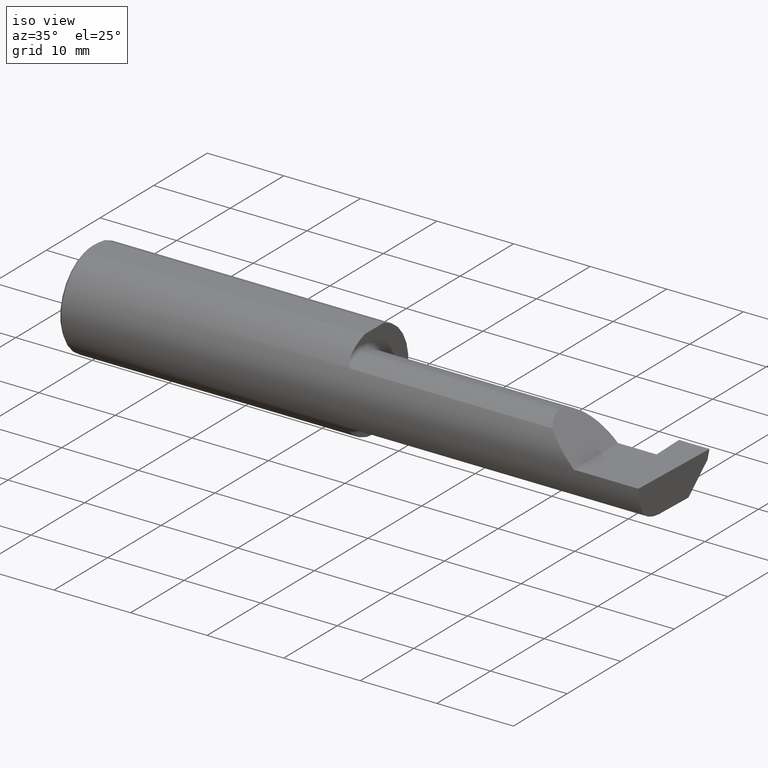
[diagram: clean part render]
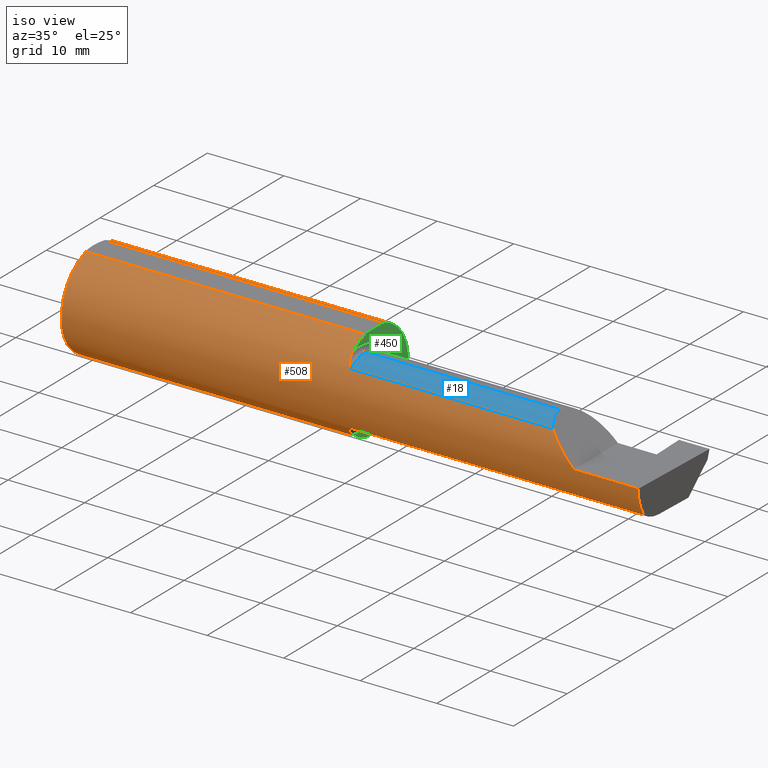
[diagram: same view with three faces highlighted in distinct colors, each labeled with its STEP entity id]
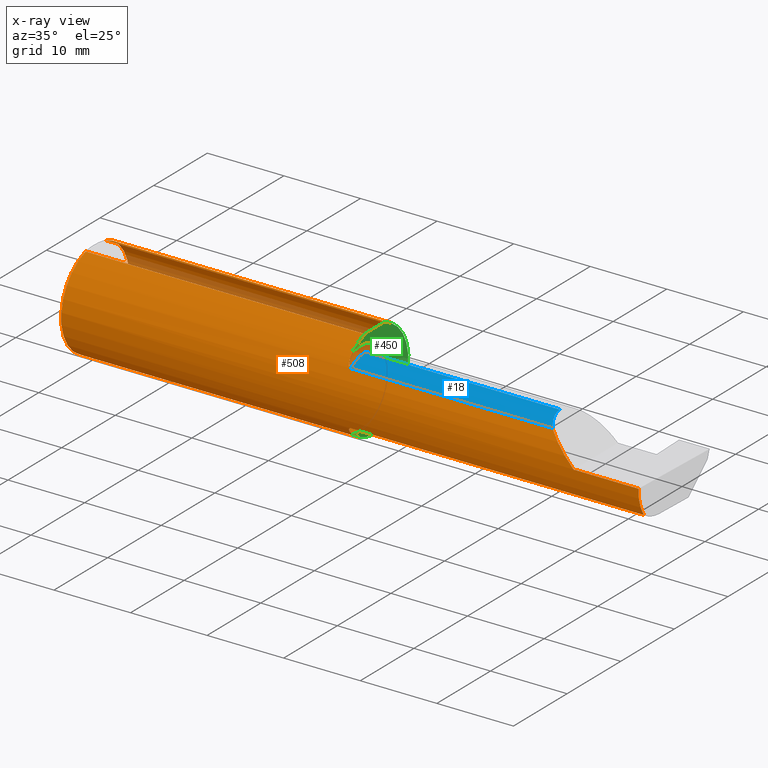
[diagram: x-ray of the same camera — body ghosted, the three highlighted faces saturated]
A machine part, iso view with three faces highlighted in distinct colors.
The next image is the same camera in x-ray (body ghosted, the three faces saturated) — at least one of them is partly hidden behind the body in this view.
Their STEP definitions:

[orange] entity #508 — the highlighted cylindrical surface (partial cylindrical patch) has radius 6.3462 mm, axis along (-1, -0, -0).
#3 = CARTESIAN_POINT ( 'NONE',  ( 1.450000000000000400, -0.1716188362992555616, -0.1820560320165479640 ) ) ;
#4 = CARTESIAN_POINT ( 'NONE',  ( 1.451849548162864822, -0.1805300287242673496, 0.1728462070311780341 ) ) ;
#6 = DIRECTION ( 'NONE',  ( 0.000000000000000000, 0.000000000000000000, 1.000000000000000000 ) ) ;
#9 = CARTESIAN_POINT ( 'NONE',  ( 1.474999999999999867, -0.2080850024789292485, 0.1382955322609664972 ) ) ;
#10 = CIRCLE ( 'NONE', #130, 0.2498499999999999888 ) ;
#11 = VERTEX_POINT ( 'NONE', #604 ) ;
#20 = CARTESIAN_POINT ( 'NONE',  ( 2.159000000000000252, -0.2080850024789291652, 0.1382955322609665250 ) ) ;
#31 = DIRECTION ( 'NONE',  ( -1.000000000000000000, -0.000000000000000000, -0.000000000000000000 ) ) ;
#35 = EDGE_CURVE ( 'NONE', #268, #240, #403, .T. ) ;
#49 = CARTESIAN_POINT ( 'NONE',  ( 0.000000000000000000, -0.06997856814768359246, 0.2398500000000000076 ) ) ;
#58 = EDGE_CURVE ( 'NONE', #181, #777, #781, .T. ) ;
#61 = CARTESIAN_POINT ( 'NONE',  ( 1.451385488563269988, -0.1808287530430325030, -0.1728790649396287349 ) ) ;
#67 = VECTOR ( 'NONE', #624, 39.37007874015748143 ) ;
#70 = CARTESIAN_POINT ( 'NONE',  ( 2.977412177158956563, -0.2496672875357696664, -0.1999314649951114686 ) ) ;
#80 = CARTESIAN_POINT ( 'NONE',  ( 1.462616400345755352, -0.2024684335577100758, 0.1464246884265640869 ) ) ;
#97 = EDGE_CURVE ( 'NONE', #777, #240, #135, .T. ) ;
#115 = DIRECTION ( 'NONE',  ( -1.000000000000000000, -0.000000000000000000, -0.000000000000000000 ) ) ;
#130 = AXIS2_PLACEMENT_3D ( 'NONE', #705, #242, #370 ) ;
#134 = CARTESIAN_POINT ( 'NONE',  ( 1.468863362722770516, -0.2068301641248769807, -0.1401678546132362202 ) ) ;
#135 = LINE ( 'NONE', #20, #67 ) ;
#147 = CARTESIAN_POINT ( 'NONE',  ( 1.458182335268384477, -0.1972192205116128916, 0.1535061413537212038 ) ) ;
#149 = CARTESIAN_POINT ( 'NONE',  ( 0.01499999999999999944, 0.000000000000000000, 0.000000000000000000 ) ) ;
#154 = VECTOR ( 'NONE', #797, 39.37007874015748854 ) ;
#157 = AXIS2_PLACEMENT_3D ( 'NONE', #560, #115, #6 ) ;
#166 = AXIS2_PLACEMENT_3D ( 'NONE', #149, #327, #214 ) ;
#169 = ORIENTED_EDGE ( 'NONE', *, *, #58, .F. ) ;
#171 = CARTESIAN_POINT ( 'NONE',  ( 1.450000000000000178, 0.000000000000000000, 0.000000000000000000 ) ) ;
#181 = VERTEX_POINT ( 'NONE', #292 ) ;
#184 = CARTESIAN_POINT ( 'NONE',  ( 0.01499999999999998036, 0.06997856814768359246, 0.2398500000000000076 ) ) ;
#189 = ORIENTED_EDGE ( 'NONE', *, *, #396, .T. ) ;
#199 = CARTESIAN_POINT ( 'NONE',  ( 1.471700027347579542, -0.2077785947292766777, -0.1387580622202828073 ) ) ;
#200 = EDGE_LOOP ( 'NONE', ( #341, #595, #310, #684, #169, #593, #575, #406, #326, #525, #446, #284, #489, #189 ) ) ;
#201 = CARTESIAN_POINT ( 'NONE',  ( 4.499279347985559139E-32, -0.2498499999999999610, 3.673940397442053459E-16 ) ) ;
#207 = CARTESIAN_POINT ( 'NONE',  ( 1.467647060162628136, -0.2062109266231179627, 0.1410799729252294465 ) ) ;
#211 = CARTESIAN_POINT ( 'NONE',  ( 2.511704467739034552, -0.2080850024789292485, 0.1382955322609664139 ) ) ;
#214 = DIRECTION ( 'NONE',  ( 0.000000000000000000, 0.000000000000000000, 1.000000000000000000 ) ) ;
#217 = LINE ( 'NONE', #49, #743 ) ;
#225 = EDGE_CURVE ( 'NONE', #739, #11, #217, .T. ) ;
#236 = CARTESIAN_POINT ( 'NONE',  ( 2.511704467739034552, -0.2080850024789292485, 0.1382955322609664139 ) ) ;
#240 = VERTEX_POINT ( 'NONE', #211 ) ;
#242 = DIRECTION ( 'NONE',  ( 1.000000000000000000, 0.000000000000000000, 0.000000000000000000 ) ) ;
#243 = EDGE_CURVE ( 'NONE', #11, #181, #535, .T. ) ;
#258 = CARTESIAN_POINT ( 'NONE',  ( 1.473329956043142541, -0.2080850024798588660, 0.1382955322595677550 ) ) ;
#261 = FACE_OUTER_BOUND ( 'NONE', #200, .T. ) ;
#263 = CARTESIAN_POINT ( 'NONE',  ( 1.452968662030528879, -0.1849684355203377040, 0.1680843977756268370 ) ) ;
#268 = VERTEX_POINT ( 'NONE', #584 ) ;
#269 = DIRECTION ( 'NONE',  ( -1.000000000000000000, -0.000000000000000000, -0.000000000000000000 ) ) ;
#279 = CARTESIAN_POINT ( 'NONE',  ( 1.474999999999999867, -0.2080850024789292485, 0.1382955322609664972 ) ) ;
#282 = EDGE_CURVE ( 'NONE', #789, #714, #643, .T. ) ;
#284 = ORIENTED_EDGE ( 'NONE', *, *, #667, .F. ) ;
#285 = CIRCLE ( 'NONE', #166, 0.2498499999999999888 ) ;
#292 = CARTESIAN_POINT ( 'NONE',  ( 1.450000000000000622, -0.1616050818046604332, 0.1905487340154980169 ) ) ;
#301 = CARTESIAN_POINT ( 'NONE',  ( 1.464302603425052807, -0.2041009206016212441, -0.1441313430770041482 ) ) ;
#303 = EDGE_CURVE ( 'NONE', #488, #694, #10, .T. ) ;
#310 = ORIENTED_EDGE ( 'NONE', *, *, #35, .T. ) ;
#319 = CARTESIAN_POINT ( 'NONE',  ( 1.450000000000000622, -0.1616050818046604332, 0.1905487340154980169 ) ) ;
#326 = ORIENTED_EDGE ( 'NONE', *, *, #350, .F. ) ;
#327 = DIRECTION ( 'NONE',  ( -1.000000000000000000, -0.000000000000000000, -0.000000000000000000 ) ) ;
#331 = CARTESIAN_POINT ( 'NONE',  ( 0.000000000000000000, 0.06997856814768359246, 0.2398500000000000076 ) ) ;
#337 = CARTESIAN_POINT ( 'NONE',  ( 2.159000000000000252, -0.2080850024789291652, -0.1382955322609665250 ) ) ;
#341 = ORIENTED_EDGE ( 'NONE', *, *, #660, .T. ) ;
#345 = VERTEX_POINT ( 'NONE', #544 ) ;
#350 = EDGE_CURVE ( 'NONE', #678, #773, #385, .T. ) ;
#358 = VECTOR ( 'NONE', #452, 39.37007874015748143 ) ;
#370 = DIRECTION ( 'NONE',  ( 0.000000000000000000, 0.000000000000000000, -1.000000000000000000 ) ) ;
#385 = CIRCLE ( 'NONE', #157, 0.2498499999999999888 ) ;
#389 = CARTESIAN_POINT ( 'NONE',  ( 1.456159563508734323, -0.1933019864360847051, 0.1584298865564832959 ) ) ;
#395 = VERTEX_POINT ( 'NONE', #614 ) ;
#396 = EDGE_CURVE ( 'NONE', #789, #345, #591, .T. ) ;
#399 = DIRECTION ( 'NONE',  ( 1.000000000000000000, 0.000000000000000000, 0.000000000000000000 ) ) ;
#400 = AXIS2_PLACEMENT_3D ( 'NONE', #171, #537, #474 ) ;
#403 =( BOUNDED_CURVE ( )  B_SPLINE_CURVE ( 3, ( #414, #662, #416, #236 ),
 .UNSPECIFIED., .F., .F. ) 
 B_SPLINE_CURVE_WITH_KNOTS ( ( 4, 4 ),
 ( 4.712388980384689674, 5.298966915116346321 ),
 .UNSPECIFIED. ) 
 CURVE ( )  GEOMETRIC_REPRESENTATION_ITEM ( )  RATIONAL_B_SPLINE_CURVE ( ( 1.000000000000000000, 0.9715321379117538569, 0.9715321379117538569, 1.000000000000000000 ) ) 
 REPRESENTATION_ITEM ( '' )  );
#406 = ORIENTED_EDGE ( 'NONE', *, *, #558, .F. ) ;
#414 = CARTESIAN_POINT ( 'NONE',  ( 2.650000000000000355, -0.2498499999999999610, 4.286263797015727350E-17 ) ) ;
#416 = CARTESIAN_POINT ( 'NONE',  ( 2.552984868485333347, -0.2355204011147992438, 0.09701513151466735485 ) ) ;
#421 = CARTESIAN_POINT ( 'NONE',  ( 2.980479240051444378, -0.2080850024789291652, -0.1382955322609665250 ) ) ;
#423 = CARTESIAN_POINT ( 'NONE',  ( 1.474999999999999867, -0.2080850024789291375, -0.1382955322609665805 ) ) ;
#427 = CARTESIAN_POINT ( 'NONE',  ( 1.474999999999999867, -0.2080850024789291375, -0.1382955322609665805 ) ) ;
#432 = CARTESIAN_POINT ( 'NONE',  ( 1.467611663768900510, -0.2061921161193829011, -0.1411075319999378908 ) ) ;
#441 = CARTESIAN_POINT ( 'NONE',  ( 1.468876997637614590, -0.2068363917296598409, 0.1401586554522232519 ) ) ;
#443 = LINE ( 'NONE', #201, #358 ) ;
#446 = ORIENTED_EDGE ( 'NONE', *, *, #303, .F. ) ;
#452 = DIRECTION ( 'NONE',  ( -1.000000000000000000, -0.000000000000000000, -0.000000000000000000 ) ) ;
#465 = AXIS2_PLACEMENT_3D ( 'NONE', #630, #269, #640 ) ;
#474 = DIRECTION ( 'NONE',  ( 0.000000000000000000, 0.000000000000000000, -1.000000000000000000 ) ) ;
#480 = VECTOR ( 'NONE', #576, 39.37007874015748143 ) ;
#486 = EDGE_CURVE ( 'NONE', #395, #268, #443, .T. ) ;
#487 = CARTESIAN_POINT ( 'NONE',  ( 1.450000000000000178, 0.06997856814768360634, 0.2398500000000000076 ) ) ;
#488 = VERTEX_POINT ( 'NONE', #764 ) ;
#489 = ORIENTED_EDGE ( 'NONE', *, *, #282, .F. ) ;
#508 = ADVANCED_FACE ( 'NONE', ( #261 ), #690, .T. ) ;
#509 = CARTESIAN_POINT ( 'NONE',  ( 1.471718393013768722, -0.2077830475237239238, 0.1387513848711939835 ) ) ;
#513 = B_SPLINE_CURVE_WITH_KNOTS ( 'NONE', 3,
 ( #427, #748, #199, #134, #432, #301, #687, #668, #546, #61, #3, #735 ),
 .UNSPECIFIED., .F., .F.,
 ( 4, 2, 2, 2, 2, 4 ),
 ( 1.964491428972344989E-07, 0.0001260981470478338953, 0.0002519998449527705497, 0.0005038032407626305770, 0.001007410032382351824, 0.002014623615621801474 ),
 .UNSPECIFIED. ) ;
#525 = ORIENTED_EDGE ( 'NONE', *, *, #609, .F. ) ;
#535 = CIRCLE ( 'NONE', #400, 0.2498499999999999888 ) ;
#537 = DIRECTION ( 'NONE',  ( 1.000000000000000000, 0.000000000000000000, 0.000000000000000000 ) ) ;
#544 = CARTESIAN_POINT ( 'NONE',  ( 2.982632426700502215, -0.2498495826666993769, -0.0004566631977430677986 ) ) ;
#546 = CARTESIAN_POINT ( 'NONE',  ( 1.456147634408387681, -0.1932733126899460474, -0.1584637047788197695 ) ) ;
#557 = CARTESIAN_POINT ( 'NONE',  ( 1.450367168219774294, -0.1713400252854603290, 0.1819601557798506131 ) ) ;
#558 = EDGE_CURVE ( 'NONE', #773, #739, #285, .T. ) ;
#560 = CARTESIAN_POINT ( 'NONE',  ( 0.01499999999999999944, 0.000000000000000000, 0.000000000000000000 ) ) ;
#563 = LINE ( 'NONE', #70, #154 ) ;
#575 = ORIENTED_EDGE ( 'NONE', *, *, #225, .F. ) ;
#576 = DIRECTION ( 'NONE',  ( -1.000000000000000000, -0.000000000000000000, -0.000000000000000000 ) ) ;
#583 = CARTESIAN_POINT ( 'NONE',  ( 0.01499999999999999944, 0.000000000000000000, -0.2498499999999999888 ) ) ;
#584 = CARTESIAN_POINT ( 'NONE',  ( 2.650000000000000355, -0.2498499999999999610, 4.286263797015727350E-17 ) ) ;
#591 =( BOUNDED_CURVE ( )  B_SPLINE_CURVE ( 3, ( #421, #671, #734, #675 ),
 .UNSPECIFIED., .F., .T. ) 
 B_SPLINE_CURVE_WITH_KNOTS ( ( 4, 4 ),
 ( 0.05713034791898994463, 0.6418805321923577445 ),
 .UNSPECIFIED. ) 
 CURVE ( )  GEOMETRIC_REPRESENTATION_ITEM ( )  RATIONAL_B_SPLINE_CURVE ( ( 1.000000000000000000, 0.9717080070095436284, 0.9717080070095436284, 1.000000000000000000 ) ) 
 REPRESENTATION_ITEM ( '' )  );
#593 = ORIENTED_EDGE ( 'NONE', *, *, #243, .F. ) ;
#595 = ORIENTED_EDGE ( 'NONE', *, *, #486, .T. ) ;
#603 = CARTESIAN_POINT ( 'NONE',  ( 0.01499999999999999944, -0.06997856814768359246, 0.2398500000000000076 ) ) ;
#604 = CARTESIAN_POINT ( 'NONE',  ( 1.450000000000000178, -0.06997856814768374512, 0.2398500000000000076 ) ) ;
#609 = EDGE_CURVE ( 'NONE', #694, #678, #635, .T. ) ;
#614 = CARTESIAN_POINT ( 'NONE',  ( 2.982644377562602589, -0.2498499999999999610, 1.813681607540488003E-17 ) ) ;
#615 = VECTOR ( 'NONE', #31, 39.37007874015748143 ) ;
#624 = DIRECTION ( 'NONE',  ( 1.000000000000000000, 0.000000000000000000, 0.000000000000000000 ) ) ;
#630 = CARTESIAN_POINT ( 'NONE',  ( 0.000000000000000000, 0.000000000000000000, 0.000000000000000000 ) ) ;
#635 = LINE ( 'NONE', #331, #480 ) ;
#640 = DIRECTION ( 'NONE',  ( 0.000000000000000000, 0.000000000000000000, 1.000000000000000000 ) ) ;
#643 = LINE ( 'NONE', #337, #615 ) ;
#660 = EDGE_CURVE ( 'NONE', #345, #395, #563, .T. ) ;
#662 = CARTESIAN_POINT ( 'NONE',  ( 2.600434159100403875, -0.2498499999999999055, 0.04956584089959691769 ) ) ;
#667 = EDGE_CURVE ( 'NONE', #714, #488, #513, .T. ) ;
#668 = CARTESIAN_POINT ( 'NONE',  ( 1.458176740666625948, -0.1972027065478072771, -0.1535263573771915024 ) ) ;
#671 = CARTESIAN_POINT ( 'NONE',  ( 2.980602402804240381, -0.2354324170447332498, -0.09714751587400637101 ) ) ;
#675 = CARTESIAN_POINT ( 'NONE',  ( 2.982632426700502215, -0.2498495826666993769, -0.0004566631977430677986 ) ) ;
#678 = VERTEX_POINT ( 'NONE', #184 ) ;
#684 = ORIENTED_EDGE ( 'NONE', *, *, #97, .F. ) ;
#687 = CARTESIAN_POINT ( 'NONE',  ( 1.462579853086619419, -0.2024300470081735470, -0.1464774911482685793 ) ) ;
#690 = CYLINDRICAL_SURFACE ( 'NONE', #465, 0.2498499999999999888 ) ;
#694 = VERTEX_POINT ( 'NONE', #487 ) ;
#705 = CARTESIAN_POINT ( 'NONE',  ( 1.450000000000000178, 0.000000000000000000, 0.000000000000000000 ) ) ;
#714 = VERTEX_POINT ( 'NONE', #423 ) ;
#734 = CARTESIAN_POINT ( 'NONE',  ( 2.981341028891338230, -0.2497592792593408828, -0.04986346618387151042 ) ) ;
#735 = CARTESIAN_POINT ( 'NONE',  ( 1.450000000000000622, -0.1616050818046604332, -0.1905487340154980169 ) ) ;
#739 = VERTEX_POINT ( 'NONE', #603 ) ;
#743 = VECTOR ( 'NONE', #399, 39.37007874015748143 ) ;
#748 = CARTESIAN_POINT ( 'NONE',  ( 1.473318040126429862, -0.2080850024789288044, -0.1382955322609670523 ) ) ;
#752 = CARTESIAN_POINT ( 'NONE',  ( 1.464343523383978996, -0.2041337200786079720, 0.1440846171672515719 ) ) ;
#757 = CARTESIAN_POINT ( 'NONE',  ( 1.450000000000000622, -0.1665641037263009272, 0.1863429692936361681 ) ) ;
#764 = CARTESIAN_POINT ( 'NONE',  ( 1.450000000000000622, -0.1616050818046604332, -0.1905487340154980169 ) ) ;
#766 = CARTESIAN_POINT ( 'NONE',  ( 2.980479240051444378, -0.2080850024789291652, -0.1382955322609665250 ) ) ;
#773 = VERTEX_POINT ( 'NONE', #583 ) ;
#777 = VERTEX_POINT ( 'NONE', #279 ) ;
#781 = B_SPLINE_CURVE_WITH_KNOTS ( 'NONE', 3,
 ( #319, #757, #557, #4, #263, #389, #147, #80, #752, #207, #441, #509, #258, #9 ),
 .UNSPECIFIED., .F., .F.,
 ( 4, 2, 2, 2, 2, 2, 4 ),
 ( 0.0003834465838148180101, 0.0008781406165086623906, 0.001372834649202506717, 0.001867528681896350826, 0.002114875698243273532, 0.002238549206416741173, 0.002362222714590209247 ),
 .UNSPECIFIED. ) ;
#789 = VERTEX_POINT ( 'NONE', #766 ) ;
#797 = DIRECTION ( 'NONE',  ( 0.02616100201822768243, -0.0009135623211515306406, 0.9996573249755575929 ) ) ;

[blue] entity #18 — the highlighted cylindrical surface (partial cylindrical patch) has radius 4.445 mm, axis along (-1, -0, -0).
#14 =( BOUNDED_CURVE ( )  B_SPLINE_CURVE ( 3, ( #273, #516, #71, #194 ),
 .UNSPECIFIED., .F., .T. ) 
 B_SPLINE_CURVE_WITH_KNOTS ( ( 4, 4 ),
 ( 5.623622464215678463, 6.283185307179586232 ),
 .UNSPECIFIED. ) 
 CURVE ( )  GEOMETRIC_REPRESENTATION_ITEM ( )  RATIONAL_B_SPLINE_CURVE ( ( 1.000000000000000000, 0.9640754331822828371, 0.9640754331822828371, 1.000000000000000000 ) ) 
 REPRESENTATION_ITEM ( '' )  );
#18 = ADVANCED_FACE ( 'NONE', ( #784 ), #124, .T. ) ;
#20 = CARTESIAN_POINT ( 'NONE',  ( 2.159000000000000252, -0.2080850024789291652, 0.1382955322609665250 ) ) ;
#52 = AXIS2_PLACEMENT_3D ( 'NONE', #606, #60, #790 ) ;
#57 = DIRECTION ( 'NONE',  ( -1.000000000000000000, -0.000000000000000000, -0.000000000000000000 ) ) ;
#60 = DIRECTION ( 'NONE',  ( -1.000000000000000000, -0.000000000000000000, -0.000000000000000000 ) ) ;
#66 = DIRECTION ( 'NONE',  ( 0.000000000000000000, 0.000000000000000000, 1.000000000000000000 ) ) ;
#67 = VECTOR ( 'NONE', #624, 39.37007874015748143 ) ;
#71 = CARTESIAN_POINT ( 'NONE',  ( 2.475000000000001421, -0.1400387324517231857, 0.1750000000000000167 ) ) ;
#97 = EDGE_CURVE ( 'NONE', #777, #240, #135, .T. ) ;
#106 = ORIENTED_EDGE ( 'NONE', *, *, #641, .T. ) ;
#124 = CYLINDRICAL_SURFACE ( 'NONE', #372, 0.1749999999999999889 ) ;
#135 = LINE ( 'NONE', #20, #67 ) ;
#142 = EDGE_CURVE ( 'NONE', #240, #155, #14, .T. ) ;
#155 = VERTEX_POINT ( 'NONE', #351 ) ;
#194 = CARTESIAN_POINT ( 'NONE',  ( 2.475000000000001421, -0.1008499999999999674, 0.1749999999999999889 ) ) ;
#211 = CARTESIAN_POINT ( 'NONE',  ( 2.511704467739034552, -0.2080850024789292485, 0.1382955322609664139 ) ) ;
#216 = ORIENTED_EDGE ( 'NONE', *, *, #468, .F. ) ;
#228 = VERTEX_POINT ( 'NONE', #650 ) ;
#240 = VERTEX_POINT ( 'NONE', #211 ) ;
#271 = VECTOR ( 'NONE', #57, 39.37007874015748143 ) ;
#273 = CARTESIAN_POINT ( 'NONE',  ( 2.511704467739034552, -0.2080850024789292485, 0.1382955322609664139 ) ) ;
#279 = CARTESIAN_POINT ( 'NONE',  ( 1.474999999999999867, -0.2080850024789292485, 0.1382955322609664972 ) ) ;
#306 = CARTESIAN_POINT ( 'NONE',  ( 1.450000000000000178, -0.1008499999999999674, 0.000000000000000000 ) ) ;
#351 = CARTESIAN_POINT ( 'NONE',  ( 2.475000000000001421, -0.1008499999999999674, 0.1749999999999999889 ) ) ;
#352 = ORIENTED_EDGE ( 'NONE', *, *, #97, .T. ) ;
#367 = DIRECTION ( 'NONE',  ( -1.000000000000000000, -0.000000000000000000, -0.000000000000000000 ) ) ;
#372 = AXIS2_PLACEMENT_3D ( 'NONE', #306, #367, #66 ) ;
#388 = EDGE_LOOP ( 'NONE', ( #639, #106, #216, #352 ) ) ;
#391 = LINE ( 'NONE', #738, #271 ) ;
#401 = CIRCLE ( 'NONE', #52, 0.1749999999999999889 ) ;
#468 = EDGE_CURVE ( 'NONE', #777, #228, #401, .T. ) ;
#516 = CARTESIAN_POINT ( 'NONE',  ( 2.487690731615568307, -0.1771157075472510889, 0.1623092683844330197 ) ) ;
#606 = CARTESIAN_POINT ( 'NONE',  ( 1.474999999999999867, -0.1008499999999999674, 0.000000000000000000 ) ) ;
#624 = DIRECTION ( 'NONE',  ( 1.000000000000000000, 0.000000000000000000, 0.000000000000000000 ) ) ;
#639 = ORIENTED_EDGE ( 'NONE', *, *, #142, .T. ) ;
#641 = EDGE_CURVE ( 'NONE', #155, #228, #391, .T. ) ;
#650 = CARTESIAN_POINT ( 'NONE',  ( 1.474999999999999867, -0.1008499999999999674, 0.1749999999999999889 ) ) ;
#738 = CARTESIAN_POINT ( 'NONE',  ( 1.450000000000000178, -0.1008499999999999674, 0.1749999999999999889 ) ) ;
#777 = VERTEX_POINT ( 'NONE', #279 ) ;
#784 = FACE_OUTER_BOUND ( 'NONE', #388, .T. ) ;
#790 = DIRECTION ( 'NONE',  ( 0.000000000000000000, 0.000000000000000000, 1.000000000000000000 ) ) ;

[green] entity #450 — the highlighted planar face has unit normal (1, 0, 0).
#10 = CIRCLE ( 'NONE', #130, 0.2498499999999999888 ) ;
#11 = VERTEX_POINT ( 'NONE', #604 ) ;
#37 = ORIENTED_EDGE ( 'NONE', *, *, #360, .T. ) ;
#63 = PLANE ( 'NONE',  #746 ) ;
#130 = AXIS2_PLACEMENT_3D ( 'NONE', #705, #242, #370 ) ;
#132 = CARTESIAN_POINT ( 'NONE',  ( 1.450000000000000400, -0.1008499999999999674, 0.000000000000000000 ) ) ;
#136 = ORIENTED_EDGE ( 'NONE', *, *, #551, .T. ) ;
#141 = CARTESIAN_POINT ( 'NONE',  ( 1.450000000000000178, -0.2498499999999999888, 0.2398500000000000076 ) ) ;
#146 = DIRECTION ( 'NONE',  ( -1.000000000000000000, -0.000000000000000000, -0.000000000000000000 ) ) ;
#171 = CARTESIAN_POINT ( 'NONE',  ( 1.450000000000000178, 0.000000000000000000, 0.000000000000000000 ) ) ;
#181 = VERTEX_POINT ( 'NONE', #292 ) ;
#208 = VERTEX_POINT ( 'NONE', #652 ) ;
#242 = DIRECTION ( 'NONE',  ( 1.000000000000000000, 0.000000000000000000, 0.000000000000000000 ) ) ;
#243 = EDGE_CURVE ( 'NONE', #11, #181, #535, .T. ) ;
#246 = DIRECTION ( 'NONE',  ( -1.000000000000000000, -0.000000000000000000, -0.000000000000000000 ) ) ;
#264 = DIRECTION ( 'NONE',  ( 0.000000000000000000, 0.000000000000000000, 1.000000000000000000 ) ) ;
#280 = CARTESIAN_POINT ( 'NONE',  ( 1.450000000000000400, -0.1008499999999999674, 0.000000000000000000 ) ) ;
#292 = CARTESIAN_POINT ( 'NONE',  ( 1.450000000000000622, -0.1616050818046604332, 0.1905487340154980169 ) ) ;
#293 = EDGE_CURVE ( 'NONE', #208, #702, #357, .T. ) ;
#303 = EDGE_CURVE ( 'NONE', #488, #694, #10, .T. ) ;
#349 = ORIENTED_EDGE ( 'NONE', *, *, #293, .T. ) ;
#356 = DIRECTION ( 'NONE',  ( 0.000000000000000000, 0.000000000000000000, 1.000000000000000000 ) ) ;
#357 = CIRCLE ( 'NONE', #467, 0.1999999999999999833 ) ;
#360 = EDGE_CURVE ( 'NONE', #181, #208, #598, .T. ) ;
#362 = DIRECTION ( 'NONE',  ( 0.000000000000000000, 0.000000000000000000, -1.000000000000000000 ) ) ;
#370 = DIRECTION ( 'NONE',  ( 0.000000000000000000, 0.000000000000000000, -1.000000000000000000 ) ) ;
#375 = FACE_OUTER_BOUND ( 'NONE', #608, .T. ) ;
#380 = LINE ( 'NONE', #141, #759 ) ;
#390 = ORIENTED_EDGE ( 'NONE', *, *, #504, .F. ) ;
#397 = AXIS2_PLACEMENT_3D ( 'NONE', #754, #146, #264 ) ;
#400 = AXIS2_PLACEMENT_3D ( 'NONE', #171, #537, #474 ) ;
#450 = ADVANCED_FACE ( 'NONE', ( #375 ), #63, .T. ) ;
#459 = AXIS2_PLACEMENT_3D ( 'NONE', #132, #246, #356 ) ;
#467 = AXIS2_PLACEMENT_3D ( 'NONE', #280, #519, #767 ) ;
#474 = DIRECTION ( 'NONE',  ( 0.000000000000000000, 0.000000000000000000, -1.000000000000000000 ) ) ;
#487 = CARTESIAN_POINT ( 'NONE',  ( 1.450000000000000178, 0.06997856814768360634, 0.2398500000000000076 ) ) ;
#488 = VERTEX_POINT ( 'NONE', #764 ) ;
#491 = CARTESIAN_POINT ( 'NONE',  ( 1.450000000000000178, -0.1008499999999999536, -0.1999999999999999833 ) ) ;
#504 = EDGE_CURVE ( 'NONE', #11, #694, #380, .T. ) ;
#519 = DIRECTION ( 'NONE',  ( -1.000000000000000000, -0.000000000000000000, -0.000000000000000000 ) ) ;
#527 = ORIENTED_EDGE ( 'NONE', *, *, #303, .T. ) ;
#535 = CIRCLE ( 'NONE', #400, 0.2498499999999999888 ) ;
#537 = DIRECTION ( 'NONE',  ( 1.000000000000000000, 0.000000000000000000, 0.000000000000000000 ) ) ;
#549 = DIRECTION ( 'NONE',  ( 1.000000000000000000, 0.000000000000000000, 0.000000000000000000 ) ) ;
#551 = EDGE_CURVE ( 'NONE', #702, #488, #707, .T. ) ;
#598 = CIRCLE ( 'NONE', #459, 0.1999999999999999833 ) ;
#604 = CARTESIAN_POINT ( 'NONE',  ( 1.450000000000000178, -0.06997856814768374512, 0.2398500000000000076 ) ) ;
#608 = EDGE_LOOP ( 'NONE', ( #527, #390, #656, #37, #349, #136 ) ) ;
#652 = CARTESIAN_POINT ( 'NONE',  ( 1.450000000000000178, -0.1008499999999999674, 0.1999999999999999833 ) ) ;
#656 = ORIENTED_EDGE ( 'NONE', *, *, #243, .T. ) ;
#694 = VERTEX_POINT ( 'NONE', #487 ) ;
#702 = VERTEX_POINT ( 'NONE', #491 ) ;
#705 = CARTESIAN_POINT ( 'NONE',  ( 1.450000000000000178, 0.000000000000000000, 0.000000000000000000 ) ) ;
#707 = CIRCLE ( 'NONE', #397, 0.1999999999999999833 ) ;
#727 = CARTESIAN_POINT ( 'NONE',  ( 1.450000000000000178, 0.2741499999999998938, 0.000000000000000000 ) ) ;
#746 = AXIS2_PLACEMENT_3D ( 'NONE', #727, #549, #362 ) ;
#751 = DIRECTION ( 'NONE',  ( -0.000000000000000000, 1.000000000000000000, 0.000000000000000000 ) ) ;
#754 = CARTESIAN_POINT ( 'NONE',  ( 1.450000000000000400, -0.1008499999999999674, 0.000000000000000000 ) ) ;
#759 = VECTOR ( 'NONE', #751, 39.37007874015748143 ) ;
#764 = CARTESIAN_POINT ( 'NONE',  ( 1.450000000000000622, -0.1616050818046604332, -0.1905487340154980169 ) ) ;
#767 = DIRECTION ( 'NONE',  ( 0.000000000000000000, 0.000000000000000000, 1.000000000000000000 ) ) ;